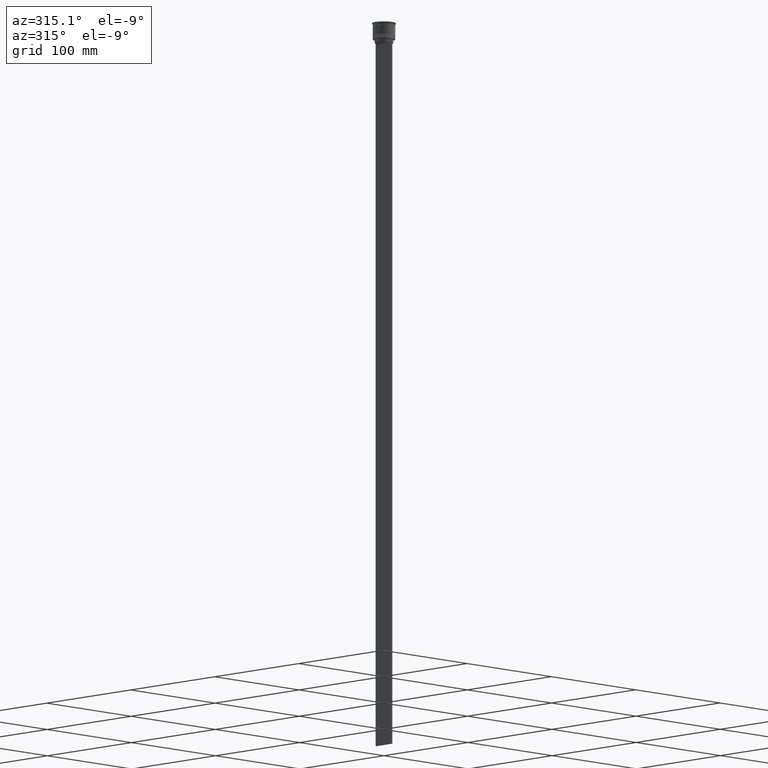
[diagram: clean part render]
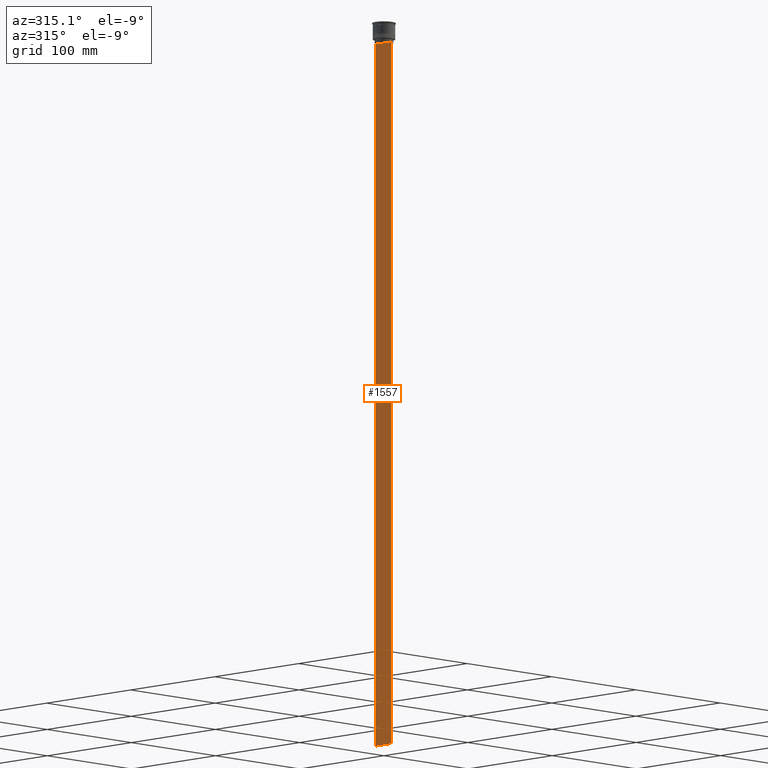
[diagram: same view with one face highlighted and labeled with its STEP entity id]
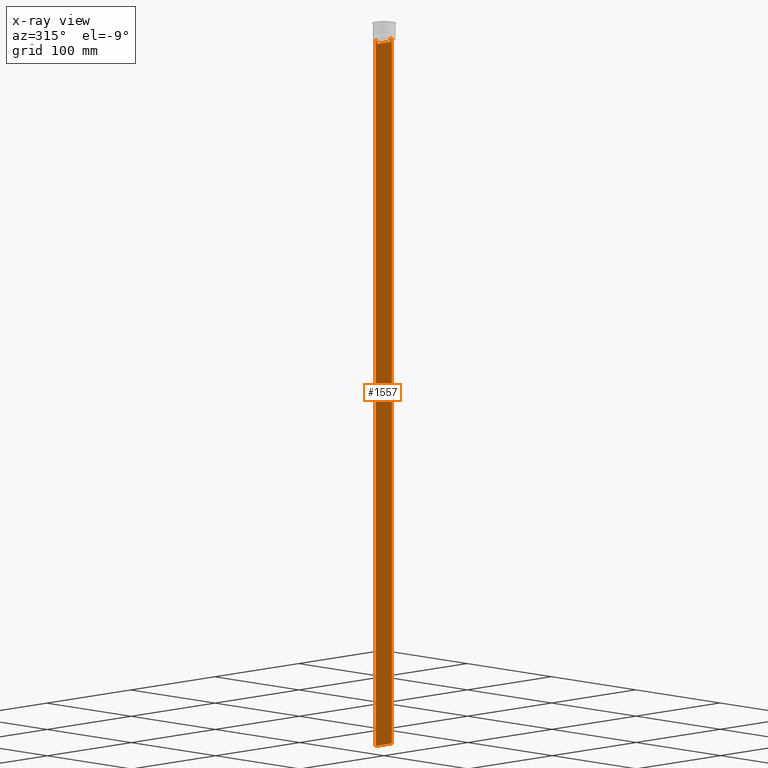
[diagram: x-ray of the same camera — body ghosted, the highlighted face saturated]
A machine part, auxiliary view. The second image highlights one B-rep face of the part: STEP entity #1557.
The next image is the same camera in x-ray: the body ghosted, the highlighted face saturated — about 0% of this face is hidden behind the body in this view.
In plain terms, the highlighted planar face has unit normal (-1, 0, 0).
Its self-contained STEP definition (entity closure, byte-faithful):
#2 = VERTEX_POINT ( 'NONE', #1692 ) ;
#5 = B_SPLINE_CURVE_WITH_KNOTS ( 'NONE', 3,
 ( #2006, #1546, #153, #959 ),
 .UNSPECIFIED., .F., .F.,
 ( 4, 4 ),
 ( 0.03673372442973153046, 0.03744389749832059688 ),
 .UNSPECIFIED. ) ;
#9 = DIRECTION ( 'NONE',  ( 0.000000000000000000, -1.000000000000000000, 0.000000000000000000 ) ) ;
#11 = EDGE_CURVE ( 'NONE', #2, #1165, #1869, .T. ) ;
#53 = EDGE_CURVE ( 'NONE', #2044, #70, #892, .T. ) ;
#70 = VERTEX_POINT ( 'NONE', #1338 ) ;
#82 = CARTESIAN_POINT ( 'NONE',  ( -0.5000000000000000000, 7.899999999999994138, -17.00000000000000000 ) ) ;
#84 = ORIENTED_EDGE ( 'NONE', *, *, #1853, .T. ) ;
#119 = VECTOR ( 'NONE', #2647, 1000.000000000000000 ) ;
#153 = CARTESIAN_POINT ( 'NONE',  ( -0.5000000000000000000, -8.218133703942523738, -14.16667607853445787 ) ) ;
#158 = DIRECTION ( 'NONE',  ( 0.000000000000000000, 0.000000000000000000, -1.000000000000000000 ) ) ;
#245 = VECTOR ( 'NONE', #579, 1000.000000000000000 ) ;
#320 = CARTESIAN_POINT ( 'NONE',  ( -0.5000000000000000000, -9.500000000000001776, 5.026297590440445440 ) ) ;
#359 = LINE ( 'NONE', #388, #1713 ) ;
#377 = CARTESIAN_POINT ( 'NONE',  ( -0.5000000000000000000, 8.385105843100605583, -14.00000000000000178 ) ) ;
#388 = CARTESIAN_POINT ( 'NONE',  ( -0.5000000000000000000, 7.884161337770803080, 0.000000000000000000 ) ) ;
#397 = PLANE ( 'NONE',  #1044 ) ;
#402 = DIRECTION ( 'NONE',  ( -0.000000000000000000, -0.000000000000000000, 1.000000000000000000 ) ) ;
#407 = VECTOR ( 'NONE', #1982, 1000.000000000000000 ) ;
#414 = VECTOR ( 'NONE', #158, 1000.000000000000000 ) ;
#448 = ORIENTED_EDGE ( 'NONE', *, *, #1093, .F. ) ;
#469 = ORIENTED_EDGE ( 'NONE', *, *, #53, .F. ) ;
#535 = CARTESIAN_POINT ( 'NONE',  ( -0.5000000000000000000, 9.386692708297204035, -14.00000000000000178 ) ) ;
#564 = CARTESIAN_POINT ( 'NONE',  ( -0.5000000000000000000, 7.884161337770803080, -14.50000000000000000 ) ) ;
#579 = DIRECTION ( 'NONE',  ( 0.000000000000000000, -1.000000000000000000, 0.000000000000000000 ) ) ;
#593 = EDGE_CURVE ( 'NONE', #999, #2357, #596, .T. ) ;
#596 = LINE ( 'NONE', #826, #2146 ) ;
#601 = LINE ( 'NONE', #1628, #2066 ) ;
#613 = ORIENTED_EDGE ( 'NONE', *, *, #792, .F. ) ;
#648 = B_SPLINE_CURVE_WITH_KNOTS ( 'NONE', 3,
 ( #1721, #1511, #2334, #1202 ),
 .UNSPECIFIED., .F., .F.,
 ( 4, 4 ),
 ( 0.01426761478740281447, 0.01497538974438914448 ),
 .UNSPECIFIED. ) ;
#650 = EDGE_CURVE ( 'NONE', #2163, #999, #601, .T. ) ;
#661 = EDGE_LOOP ( 'NONE', ( #613, #2495, #738, #84, #2615, #948, #469, #1842, #1082, #1399, #1627, #448 ) ) ;
#738 = ORIENTED_EDGE ( 'NONE', *, *, #650, .F. ) ;
#792 = EDGE_CURVE ( 'NONE', #2357, #1597, #648, .T. ) ;
#826 = CARTESIAN_POINT ( 'NONE',  ( -0.5000000000000000000, -9.500000000000001776, -14.00000000000000178 ) ) ;
#892 = LINE ( 'NONE', #1949, #407 ) ;
#896 = DIRECTION ( 'NONE',  ( 0.000000000000000000, -1.000000000000000000, 0.000000000000000000 ) ) ;
#914 = VERTEX_POINT ( 'NONE', #983 ) ;
#948 = ORIENTED_EDGE ( 'NONE', *, *, #1809, .F. ) ;
#959 = CARTESIAN_POINT ( 'NONE',  ( -0.5000000000000000000, -8.385105843100605583, -14.00000000000000178 ) ) ;
#983 = CARTESIAN_POINT ( 'NONE',  ( -0.5000000000000000000, 9.499999999999998224, -614.0000000000000000 ) ) ;
#984 = EDGE_CURVE ( 'NONE', #1165, #2300, #5, .T. ) ;
#999 = VERTEX_POINT ( 'NONE', #535 ) ;
#1014 = DIRECTION ( 'NONE',  ( 0.000000000000000000, 0.000000000000000000, -1.000000000000000000 ) ) ;
#1036 = CARTESIAN_POINT ( 'NONE',  ( -0.5000000000000000000, -9.500000000000001776, -614.0000000000000000 ) ) ;
#1044 = AXIS2_PLACEMENT_3D ( 'NONE', #1598, #1216, #2422 ) ;
#1082 = ORIENTED_EDGE ( 'NONE', *, *, #984, .F. ) ;
#1093 = EDGE_CURVE ( 'NONE', #1597, #1343, #359, .T. ) ;
#1160 = LINE ( 'NONE', #82, #2445 ) ;
#1165 = VERTEX_POINT ( 'NONE', #1600 ) ;
#1192 = CARTESIAN_POINT ( 'NONE',  ( -0.5000000000000000000, -9.500000000000001776, -614.0000000000000000 ) ) ;
#1197 = VERTEX_POINT ( 'NONE', #1192 ) ;
#1202 = CARTESIAN_POINT ( 'NONE',  ( -0.5000000000000000000, 7.884161337770803080, -14.50000000000000000 ) ) ;
#1216 = DIRECTION ( 'NONE',  ( -1.000000000000000000, 0.000000000000000000, 0.000000000000000000 ) ) ;
#1219 = CARTESIAN_POINT ( 'NONE',  ( -0.5000000000000000000, -9.500000000000001776, -14.00000000000000178 ) ) ;
#1220 = CARTESIAN_POINT ( 'NONE',  ( -0.5000000000000000000, -9.386692708297204035, -14.00000000000000178 ) ) ;
#1338 = CARTESIAN_POINT ( 'NONE',  ( -0.5000000000000000000, -9.500000000000001776, -14.00000000000000178 ) ) ;
#1343 = VERTEX_POINT ( 'NONE', #1696 ) ;
#1399 = ORIENTED_EDGE ( 'NONE', *, *, #11, .F. ) ;
#1484 = EDGE_CURVE ( 'NONE', #1343, #2, #1160, .T. ) ;
#1488 = CARTESIAN_POINT ( 'NONE',  ( -0.5000000000000000000, 9.499999999999994671, -14.00000000000000178 ) ) ;
#1511 = CARTESIAN_POINT ( 'NONE',  ( -0.5000000000000000000, 8.218133718559618828, -14.16667606394327983 ) ) ;
#1546 = CARTESIAN_POINT ( 'NONE',  ( -0.5000000000000000000, -8.051152795888546265, -14.33334334204685057 ) ) ;
#1557 = ADVANCED_FACE ( 'NONE', ( #2459 ), #397, .T. ) ;
#1582 = VECTOR ( 'NONE', #402, 1000.000000000000000 ) ;
#1597 = VERTEX_POINT ( 'NONE', #564 ) ;
#1598 = CARTESIAN_POINT ( 'NONE',  ( -0.5000000000000000000, -9.500000000000001776, 5.026297590440445440 ) ) ;
#1600 = CARTESIAN_POINT ( 'NONE',  ( -0.5000000000000000000, -7.884161337770803080, -14.50000000000000000 ) ) ;
#1627 = ORIENTED_EDGE ( 'NONE', *, *, #1484, .F. ) ;
#1628 = CARTESIAN_POINT ( 'NONE',  ( -0.5000000000000000000, -9.500000000000001776, -14.00000000000000178 ) ) ;
#1635 = VECTOR ( 'NONE', #2087, 1000.000000000000000 ) ;
#1692 = CARTESIAN_POINT ( 'NONE',  ( -0.5000000000000000000, -7.884161337770803080, -17.00000000000000000 ) ) ;
#1696 = CARTESIAN_POINT ( 'NONE',  ( -0.5000000000000000000, 7.884161337770803080, -17.00000000000000000 ) ) ;
#1713 = VECTOR ( 'NONE', #1014, 1000.000000000000000 ) ;
#1721 = CARTESIAN_POINT ( 'NONE',  ( -0.5000000000000000000, 8.385105843100605583, -14.00000000000000178 ) ) ;
#1809 = EDGE_CURVE ( 'NONE', #70, #1197, #2616, .T. ) ;
#1842 = ORIENTED_EDGE ( 'NONE', *, *, #2381, .F. ) ;
#1853 = EDGE_CURVE ( 'NONE', #2163, #914, #2213, .T. ) ;
#1869 = LINE ( 'NONE', #2515, #1582 ) ;
#1949 = CARTESIAN_POINT ( 'NONE',  ( -0.5000000000000000000, -9.500000000000001776, -14.00000000000000178 ) ) ;
#1982 = DIRECTION ( 'NONE',  ( 0.000000000000000000, -1.000000000000000000, 0.000000000000000000 ) ) ;
#2006 = CARTESIAN_POINT ( 'NONE',  ( -0.5000000000000000000, -7.884161337770803080, -14.50000000000000000 ) ) ;
#2044 = VERTEX_POINT ( 'NONE', #1220 ) ;
#2066 = VECTOR ( 'NONE', #2466, 1000.000000000000000 ) ;
#2087 = DIRECTION ( 'NONE',  ( 0.000000000000000000, 1.000000000000000000, 0.000000000000000000 ) ) ;
#2146 = VECTOR ( 'NONE', #9, 1000.000000000000000 ) ;
#2163 = VERTEX_POINT ( 'NONE', #1488 ) ;
#2213 = LINE ( 'NONE', #2418, #414 ) ;
#2300 = VERTEX_POINT ( 'NONE', #2371 ) ;
#2325 = LINE ( 'NONE', #1036, #1635 ) ;
#2334 = CARTESIAN_POINT ( 'NONE',  ( -0.5000000000000000000, 8.051152811434374001, -14.33334332653219079 ) ) ;
#2357 = VERTEX_POINT ( 'NONE', #377 ) ;
#2371 = CARTESIAN_POINT ( 'NONE',  ( -0.5000000000000000000, -8.385105843100605583, -14.00000000000000178 ) ) ;
#2381 = EDGE_CURVE ( 'NONE', #2300, #2044, #2462, .T. ) ;
#2418 = CARTESIAN_POINT ( 'NONE',  ( -0.5000000000000000000, 9.499999999999998224, 5.026297590440445440 ) ) ;
#2422 = DIRECTION ( 'NONE',  ( 0.000000000000000000, 0.000000000000000000, 1.000000000000000000 ) ) ;
#2445 = VECTOR ( 'NONE', #896, 1000.000000000000000 ) ;
#2459 = FACE_OUTER_BOUND ( 'NONE', #661, .T. ) ;
#2462 = LINE ( 'NONE', #1219, #245 ) ;
#2466 = DIRECTION ( 'NONE',  ( 0.000000000000000000, -1.000000000000000000, 0.000000000000000000 ) ) ;
#2495 = ORIENTED_EDGE ( 'NONE', *, *, #593, .F. ) ;
#2515 = CARTESIAN_POINT ( 'NONE',  ( -0.5000000000000000000, -7.884161337770803080, 0.000000000000000000 ) ) ;
#2600 = EDGE_CURVE ( 'NONE', #1197, #914, #2325, .T. ) ;
#2615 = ORIENTED_EDGE ( 'NONE', *, *, #2600, .F. ) ;
#2616 = LINE ( 'NONE', #320, #119 ) ;
#2647 = DIRECTION ( 'NONE',  ( 0.000000000000000000, 0.000000000000000000, -1.000000000000000000 ) ) ;